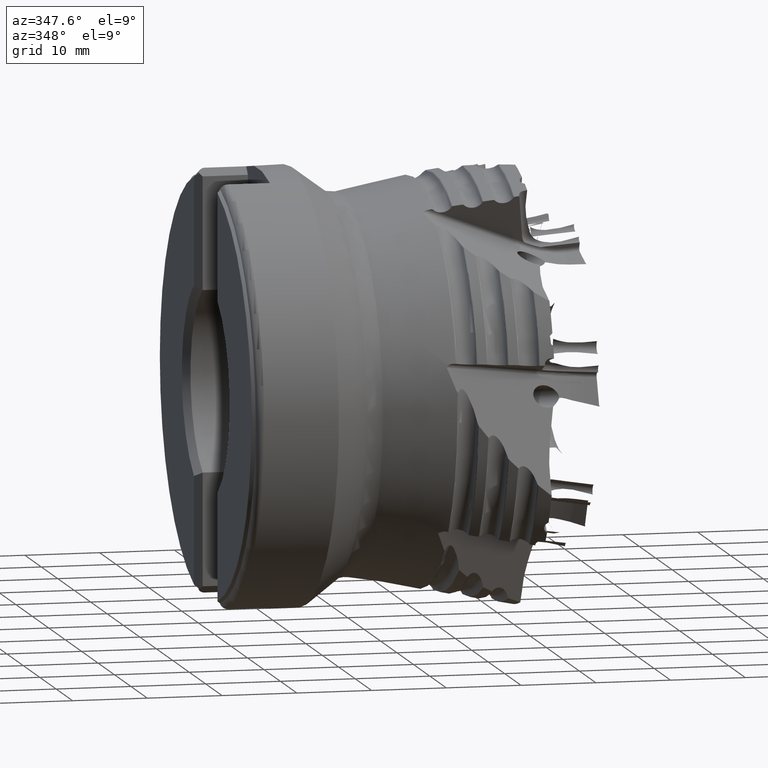
[diagram: clean part render]
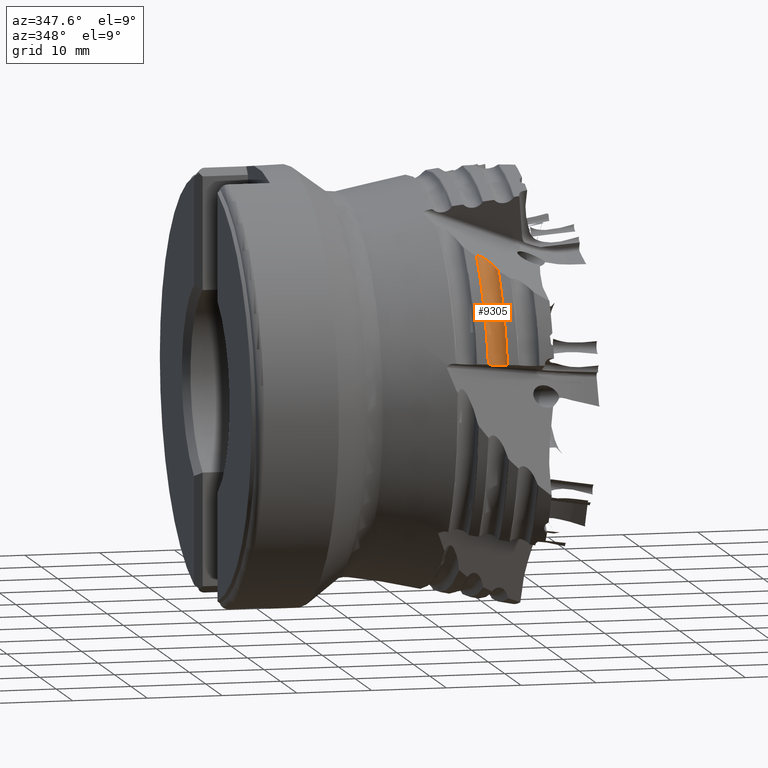
[diagram: same view with one face highlighted and labeled with its STEP entity id]
A machine part, auxiliary view. The second image highlights one B-rep face of the part: STEP entity #9305.
In plain terms, the highlighted toroidal blend (fillet) surface has major radius 28.8419 mm and minor (blend) radius 1.5 mm.
Its self-contained STEP definition (entity closure, byte-faithful):
#148 = ORIENTED_EDGE ( 'NONE', *, *, #3136, .T. ) ;
#221 = CARTESIAN_POINT ( 'NONE',  ( -16.25519927499540900, -26.65093619856306300, 6.148611164653771300 ) ) ;
#349 = CARTESIAN_POINT ( 'NONE',  ( -14.67063467501784800, 0.0000000000000000000, 0.0000000000000000000 ) ) ;
#406 = CARTESIAN_POINT ( 'NONE',  ( -15.36728484291183600, -20.18617741597388700, 18.67896178149343100 ) ) ;
#489 = EDGE_CURVE ( 'NONE', #5461, #8166, #8936, .T. ) ;
#1002 = B_SPLINE_CURVE_WITH_KNOTS ( 'NONE', 3,
 ( #11855, #8487, #7586, #5522, #12923, #6589, #221, #7628, #1276, #8730, #2329, #9785, #3425, #10828, #4481, #11899 ),
 .UNSPECIFIED., .F., .F.,
 ( 4, 2, 2, 2, 2, 2, 2, 4 ),
 ( 2.800612144446077400E-007, 0.0003656775174072844100, 0.0007310749736001242000, 0.001096472429792964100, 0.001461869885985803800, 0.001827267342178633600, 0.002192664798371463100, 0.002923459710757118300 ),
 .UNSPECIFIED. ) ;
#1036 = EDGE_LOOP ( 'NONE', ( #10336, #7186, #148, #10551 ) ) ;
#1276 = CARTESIAN_POINT ( 'NONE',  ( -15.88982146498534400, -26.65127346632775100, 6.122481380130627900 ) ) ;
#1357 = CIRCLE ( 'NONE', #3034, 27.78473136640645400 ) ;
#1398 = CARTESIAN_POINT ( 'NONE',  ( -14.67063467501735900, -21.86621638102152300, 17.89066622735259300 ) ) ;
#1900 = TOROIDAL_SURFACE ( 'NONE', #12041, 28.84192888939487900, 1.500000000000000900 ) ;
#2329 = CARTESIAN_POINT ( 'NONE',  ( -15.53179407923082100, -26.73833440829231400, 6.116672918308528200 ) ) ;
#2479 = CARTESIAN_POINT ( 'NONE',  ( -14.84945598793208000, -21.21554762862221100, 18.15815509694082800 ) ) ;
#2699 = CARTESIAN_POINT ( 'NONE',  ( -15.91063262564970900, -19.58279596468823800, 19.08390481111887000 ) ) ;
#3034 = AXIS2_PLACEMENT_3D ( 'NONE', #6275, #13674, #7314 ) ;
#3116 = CARTESIAN_POINT ( 'NONE',  ( -16.99942955219746200, -19.61493295834207000, 19.52685525970359100 ) ) ;
#3136 = EDGE_CURVE ( 'NONE', #5337, #5461, #7546, .T. ) ;
#3208 = EDGE_CURVE ( 'NONE', #7658, #5337, #1002, .T. ) ;
#3425 = CARTESIAN_POINT ( 'NONE',  ( -15.20501819417258500, -26.90678218676114900, 6.131681988151306100 ) ) ;
#3432 = CARTESIAN_POINT ( 'NONE',  ( -14.67063467501735200, -27.55457636692329600, 6.241208065717899900 ) ) ;
#3461 = AXIS2_PLACEMENT_3D ( 'NONE', #349, #8135, #4932 ) ;
#3593 = CARTESIAN_POINT ( 'NONE',  ( -15.04552760027052100, -20.76100652173373700, 18.37458593332610600 ) ) ;
#4040 = CARTESIAN_POINT ( 'NONE',  ( -16.04674286883845400, -19.48604410598735400, 19.16919468007881700 ) ) ;
#4164 = CARTESIAN_POINT ( 'NONE',  ( -16.78135653003562700, -19.44544168227550800, 19.48654579743371300 ) ) ;
#4217 = CARTESIAN_POINT ( 'NONE',  ( -17.06052983096077800, -19.68584638979117300, 19.53119480155555700 ) ) ;
#4481 = CARTESIAN_POINT ( 'NONE',  ( -14.76769234531914200, -27.33161580146018800, 6.197280243703281700 ) ) ;
#4932 = DIRECTION ( 'NONE',  ( 0.0000000000000000000, 0.0000000000000000000, 1.000000000000000000 ) ) ;
#5127 = EDGE_CURVE ( 'NONE', #8166, #7658, #1357, .T. ) ;
#5261 = CARTESIAN_POINT ( 'NONE',  ( -16.35819540836100600, -19.37823507266634900, 19.33063746887131300 ) ) ;
#5337 = VERTEX_POINT ( 'NONE', #3432 ) ;
#5461 = VERTEX_POINT ( 'NONE', #1398 ) ;
#5522 = CARTESIAN_POINT ( 'NONE',  ( -16.72270869975587000, -26.78463055654776400, 6.212658194439534000 ) ) ;
#5700 = CARTESIAN_POINT ( 'NONE',  ( -14.67063467501735900, -21.86621638102152300, 17.89066622735259300 ) ) ;
#5834 = DIRECTION ( 'NONE',  ( 0.0000000000000000000, 0.0000000000000000000, -1.000000000000000000 ) ) ;
#6275 = CARTESIAN_POINT ( 'NONE',  ( -17.11411155307487400, 0.0000000000000000000, 0.0000000000000000000 ) ) ;
#6589 = CARTESIAN_POINT ( 'NONE',  ( -16.37694983538144900, -26.67041699952467200, 6.161790102710403600 ) ) ;
#7186 = ORIENTED_EDGE ( 'NONE', *, *, #3208, .T. ) ;
#7314 = DIRECTION ( 'NONE',  ( 0.0000000000000000000, 0.0000000000000000000, -1.000000000000000000 ) ) ;
#7546 = CIRCLE ( 'NONE', #3461, 28.25256372225716800 ) ;
#7586 = CARTESIAN_POINT ( 'NONE',  ( -16.93132070204258700, -26.90449842159207700, 6.254979971279145600 ) ) ;
#7628 = CARTESIAN_POINT ( 'NONE',  ( -16.01106791529937800, -26.64155727837382400, 6.128960138644977500 ) ) ;
#7658 = VERTEX_POINT ( 'NONE', #10191 ) ;
#7809 = CARTESIAN_POINT ( 'NONE',  ( -15.27833271685379100, -20.32630412685440300, 18.60039300273867000 ) ) ;
#8135 = DIRECTION ( 'NONE',  ( -1.000000000000000000, 0.0000000000000000000, 0.0000000000000000000 ) ) ;
#8166 = VERTEX_POINT ( 'NONE', #9026 ) ;
#8456 = CARTESIAN_POINT ( 'NONE',  ( -16.27551109253241200, -19.39820480326533700, 19.29034614184401200 ) ) ;
#8487 = CARTESIAN_POINT ( 'NONE',  ( -17.02712431413867500, -26.97623826768911900, 6.278225647640209800 ) ) ;
#8730 = CARTESIAN_POINT ( 'NONE',  ( -15.64898037922078300, -26.69975199179211200, 6.116271933797492000 ) ) ;
#8936 = B_SPLINE_CURVE_WITH_KNOTS ( 'NONE', 3,
 ( #5700, #12034, #2479, #3593, #12077, #7809, #406, #13098, #9916, #2699, #4040, #8456, #5261, #11584, #10529, #4164, #13723, #3116, #4217, #12645 ),
 .UNSPECIFIED., .F., .F.,
 ( 4, 2, 2, 2, 2, 2, 2, 2, 2, 4 ),
 ( 9.611235609245230300E-007, 0.001081459051526967000, 0.001621708015509990300, 0.002161956979493013600, 0.002702205943476033900, 0.003242454907459055000, 0.003512579389450565200, 0.003782703871442074900, 0.004052828353433585000, 0.004322952835425096000 ),
 .UNSPECIFIED. ) ;
#9026 = CARTESIAN_POINT ( 'NONE',  ( -17.11411155307492000, -19.76201415450458000, 19.53084979360978900 ) ) ;
#9305 = ADVANCED_FACE ( 'NONE', ( #10057 ), #1900, .F. ) ;
#9785 = CARTESIAN_POINT ( 'NONE',  ( -15.31090843526487400, -26.84117756556589600, 6.124303150685666900 ) ) ;
#9916 = CARTESIAN_POINT ( 'NONE',  ( -15.67000441327492600, -19.80041539924045300, 18.91929489832044100 ) ) ;
#10001 = DIRECTION ( 'NONE',  ( 1.000000000000000000, -0.0000000000000000000, -0.0000000000000000000 ) ) ;
#10057 = FACE_OUTER_BOUND ( 'NONE', #1036, .T. ) ;
#10191 = CARTESIAN_POINT ( 'NONE',  ( -17.11411155307481000, -27.06022000709309300, 6.303633100926250100 ) ) ;
#10336 = ORIENTED_EDGE ( 'NONE', *, *, #5127, .T. ) ;
#10529 = CARTESIAN_POINT ( 'NONE',  ( -16.61572645535055800, -19.38358137292030400, 19.43607716078279100 ) ) ;
#10551 = ORIENTED_EDGE ( 'NONE', *, *, #489, .T. ) ;
#10828 = CARTESIAN_POINT ( 'NONE',  ( -14.92025162710046400, -27.13441907482377100, 6.163213708976034200 ) ) ;
#11584 = CARTESIAN_POINT ( 'NONE',  ( -16.52754348558929800, -19.37060038916441200, 19.40328317960312200 ) ) ;
#11855 = CARTESIAN_POINT ( 'NONE',  ( -17.11411155307481000, -27.06022000709309300, 6.303633100926250100 ) ) ;
#11899 = CARTESIAN_POINT ( 'NONE',  ( -14.67063467501735200, -27.55457636692329600, 6.241208065717899900 ) ) ;
#12034 = CARTESIAN_POINT ( 'NONE',  ( -14.74560819839791700, -21.53308492334989000, 18.02072558154367600 ) ) ;
#12041 = AXIS2_PLACEMENT_3D ( 'NONE', #12160, #10001, #5834 ) ;
#12077 = CARTESIAN_POINT ( 'NONE',  ( -15.11776855462626800, -20.61321053549598400, 18.44848662384131200 ) ) ;
#12160 = CARTESIAN_POINT ( 'NONE',  ( -16.05000000000000100, 0.0000000000000000000, 0.0000000000000000000 ) ) ;
#12645 = CARTESIAN_POINT ( 'NONE',  ( -17.11411155307492000, -19.76201415450458000, 19.53084979360978900 ) ) ;
#12923 = CARTESIAN_POINT ( 'NONE',  ( -16.60921997181562300, -26.73677084086984100, 6.193594535131303800 ) ) ;
#13098 = CARTESIAN_POINT ( 'NONE',  ( -15.56343661477968600, -19.92323352117746200, 18.83854388425543300 ) ) ;
#13674 = DIRECTION ( 'NONE',  ( 1.000000000000000000, -0.0000000000000000000, -0.0000000000000000000 ) ) ;
#13723 = CARTESIAN_POINT ( 'NONE',  ( -16.86031935313958400, -19.49464369669221500, 19.50475456684509400 ) ) ;